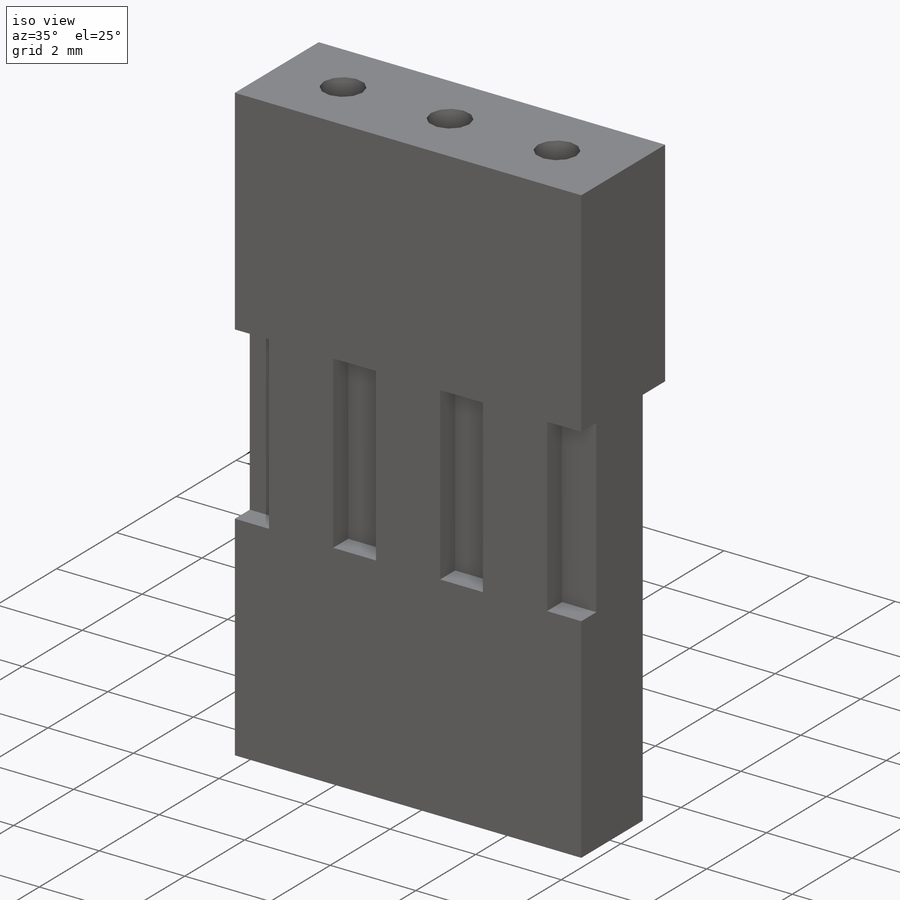
[diagram: iso view]
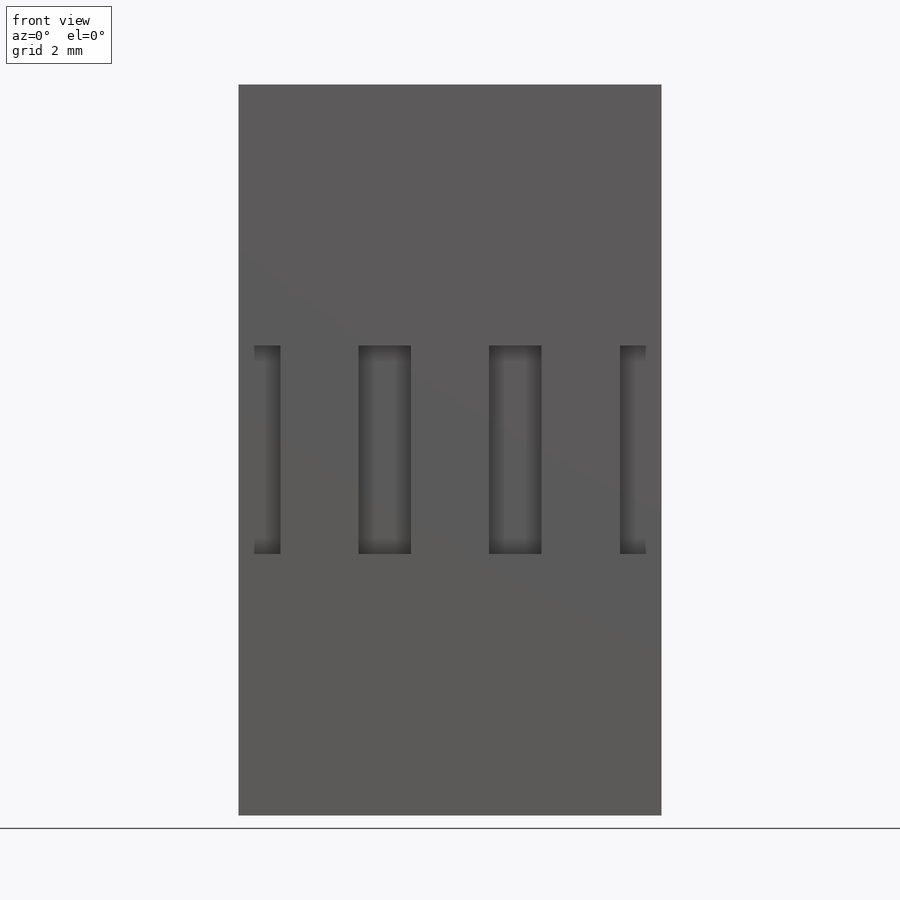
[diagram: front view]
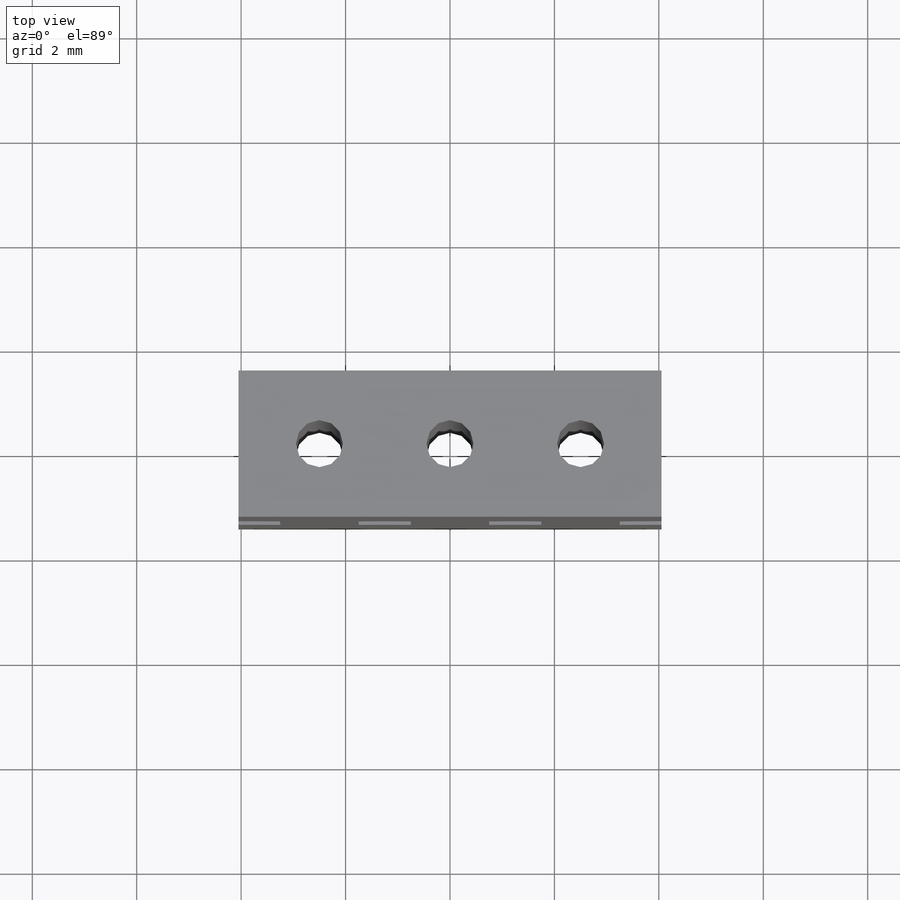
[diagram: top view]
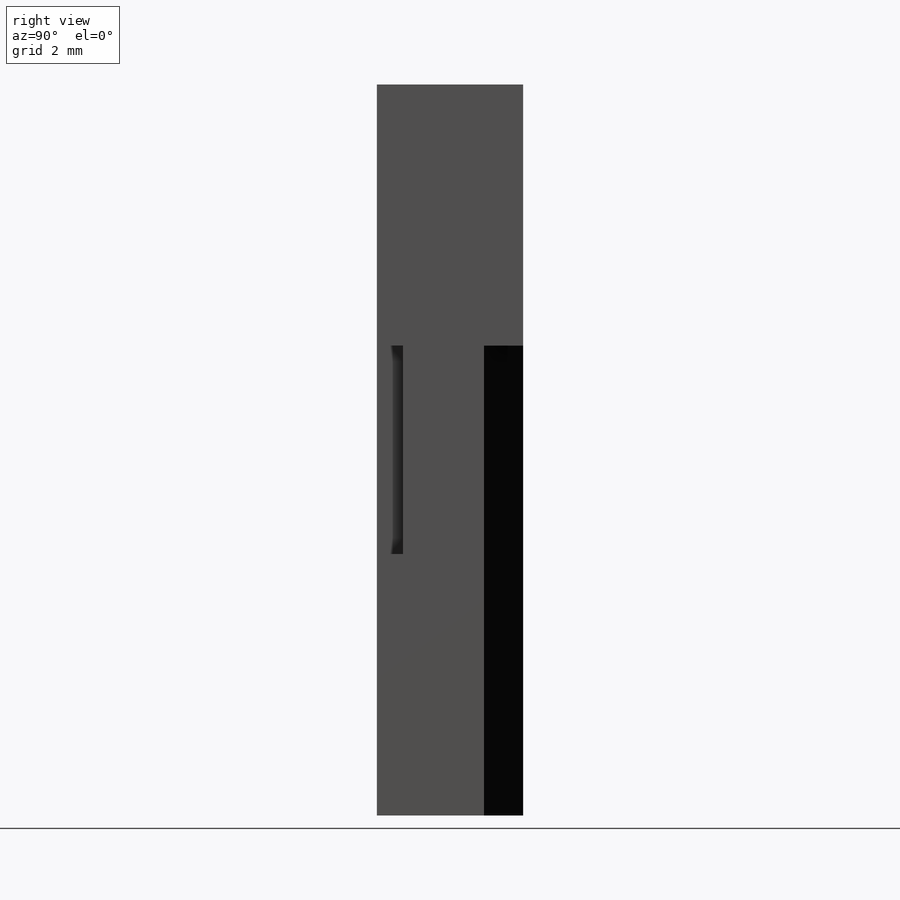
[diagram: right view]
SOLIDWORKS PART (.sldprt)
format: sldprt  version: not decoded by parser v0  size: 203,264 bytes
history: native  units: mm
features: sketch x3, extrude x2, material x1, cut_extrude x1 (+11 scaffold rows collapsed)
feature tree (18):
  scaffold x11  (default folders/planes/origin — collapsed)
  material  "ABS"
  sketch  "Sketch3"  dims[c1.D3=0.9mm c1.D4=5.5mm c1.D1=8.1mm c1.D2=2.8mm c2.D4=5.0mm]
  extrude  "Boss-Extrude1"  Depth=5mm
  sketch  "Sketch4"  dims[c1.D1=5.2mm c1.D2=5.2mm c1.D3=2.6mm c1.D5=5.2mm c1.D6=5.2mm c2.D2=6.6mm c2.D3=7.8mm c3.D3=45.0deg c3.D4=0.75mm c3.D7=0.75mm c3.D1=0.0mm]
  extrude  "Boss-Extrude4"  Depth=9mm
  sketch  "Sketch7"  dims[c1.D1=3.0mm c1.D2=9.0mm c2.D1=1.5mm c2.D2=1.5mm c2.D3=1.0mm c2.D4=5.0mm]
  cut_extrude  "Cut-Extrude2"  Depth=0.5mm
decode coverage: 6 of 6 modeling features carry decoded parameters
note: suppression state not decoded; provenance and decode notes live in map.json
